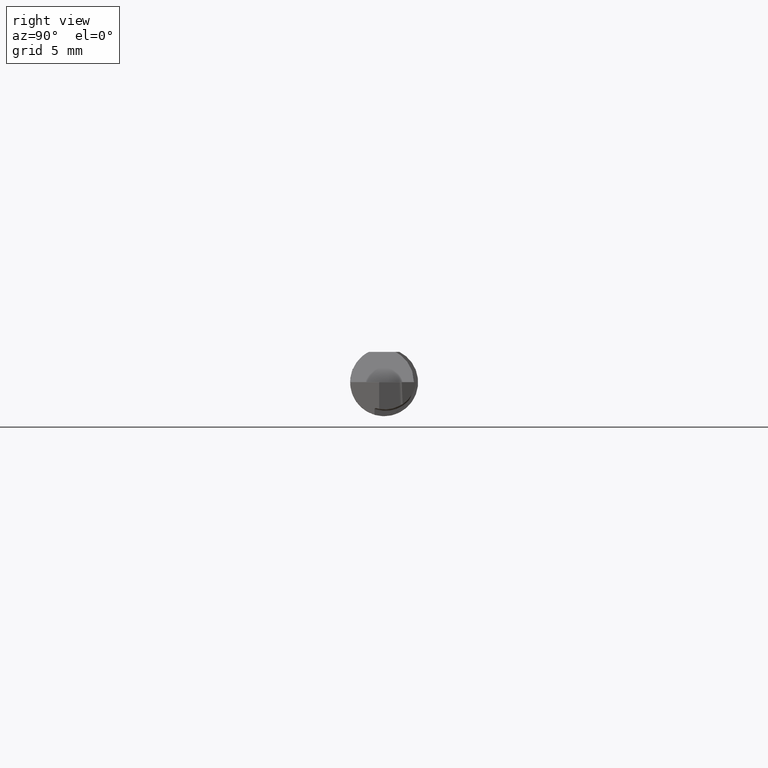
[diagram: clean part render]
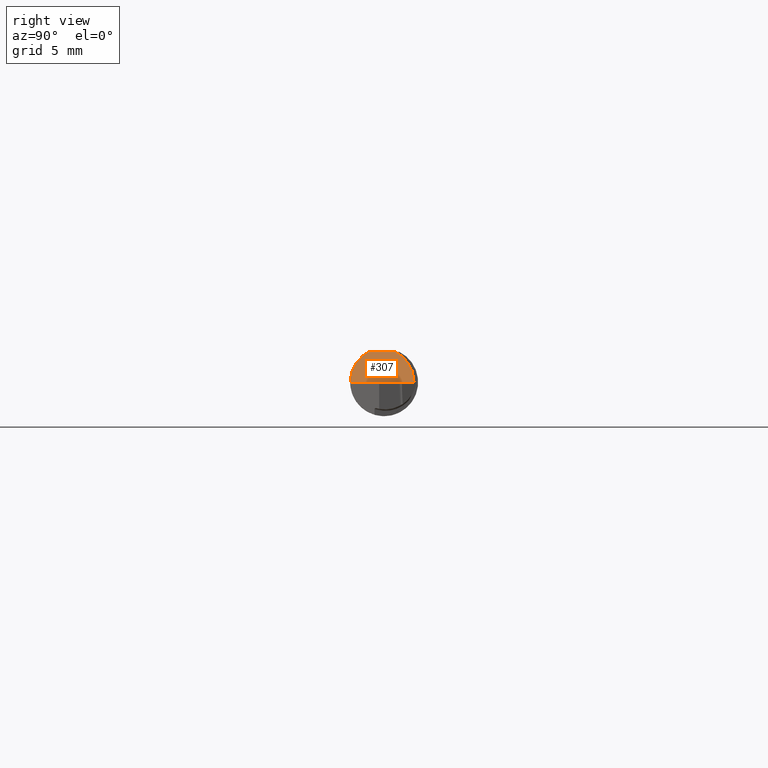
[diagram: same view with one face highlighted and labeled with its STEP entity id]
A machine part, right view. The second image highlights one B-rep face of the part: STEP entity #307.
In plain terms, the highlighted planar face has unit normal (0.7071, -0, 0.7071).
Its self-contained STEP definition (entity closure, byte-faithful):
#38 = PLANE ( 'NONE',  #734 ) ;
#122 = EDGE_CURVE ( 'NONE', #149, #625, #634, .T. ) ;
#149 = VERTEX_POINT ( 'NONE', #273 ) ;
#158 = VECTOR ( 'NONE', #565, 39.37007874015748143 ) ;
#159 = CARTESIAN_POINT ( 'NONE',  ( 1.695999999999999286, -0.04209513035969836975, 0.08360000000000000764 ) ) ;
#186 = EDGE_CURVE ( 'NONE', #625, #254, #471, .T. ) ;
#194 = CARTESIAN_POINT ( 'NONE',  ( 1.712338867969052103, -0.07454376160376645355, 0.06726113203094705173 ) ) ;
#218 = VERTEX_POINT ( 'NONE', #575 ) ;
#223 = DIRECTION ( 'NONE',  ( 0.7071067811865515695, -0.000000000000000000, 0.7071067811865434649 ) ) ;
#254 = VERTEX_POINT ( 'NONE', #159 ) ;
#260 = ORIENTED_EDGE ( 'NONE', *, *, #122, .F. ) ;
#263 = CARTESIAN_POINT ( 'NONE',  ( 1.779599999999998516, -0.09360000000000001652, 0.000000000000000000 ) ) ;
#273 = CARTESIAN_POINT ( 'NONE',  ( 1.779599999999998516, 0.08259923835978043305, 0.000000000000000000 ) ) ;
#307 = ADVANCED_FACE ( 'NONE', ( #535 ), #38, .T. ) ;
#314 = LINE ( 'NONE', #375, #158 ) ;
#321 = EDGE_LOOP ( 'NONE', ( #260, #415, #463, #378 ) ) ;
#337 = EDGE_CURVE ( 'NONE', #149, #218, #387, .T. ) ;
#339 = DIRECTION ( 'NONE',  ( 0.000000000000000000, -1.000000000000000000, 0.000000000000000000 ) ) ;
#363 = VECTOR ( 'NONE', #339, 39.37007874015748143 ) ;
#375 = CARTESIAN_POINT ( 'NONE',  ( 1.695999999999999286, 0.04209513035969836975, 0.08360000000000000764 ) ) ;
#378 = ORIENTED_EDGE ( 'NONE', *, *, #186, .F. ) ;
#387 =( BOUNDED_CURVE ( )  B_SPLINE_CURVE ( 3, ( #573, #507, #646, #762 ),
 .UNSPECIFIED., .F., .F. ) 
 B_SPLINE_CURVE_WITH_KNOTS ( ( 4, 4 ),
 ( 4.712388980384689674, 5.818846015254569792 ),
 .UNSPECIFIED. ) 
 CURVE ( )  GEOMETRIC_REPRESENTATION_ITEM ( )  RATIONAL_B_SPLINE_CURVE ( ( 1.000000000000000000, 0.9005550513955334901, 0.9005550513955334901, 1.000000000000000000 ) ) 
 REPRESENTATION_ITEM ( '' )  );
#395 = CARTESIAN_POINT ( 'NONE',  ( 1.743269953535348638, -0.09360000000000001652, 0.03633004646465035764 ) ) ;
#415 = ORIENTED_EDGE ( 'NONE', *, *, #337, .T. ) ;
#463 = ORIENTED_EDGE ( 'NONE', *, *, #620, .F. ) ;
#471 =( BOUNDED_CURVE ( )  B_SPLINE_CURVE ( 3, ( #263, #395, #194, #504 ),
 .UNSPECIFIED., .F., .F. ) 
 B_SPLINE_CURVE_WITH_KNOTS ( ( 4, 4 ),
 ( 4.712388980384689674, 5.816717474156034129 ),
 .UNSPECIFIED. ) 
 CURVE ( )  GEOMETRIC_REPRESENTATION_ITEM ( )  RATIONAL_B_SPLINE_CURVE ( ( 1.000000000000000000, 0.9009275347591065852, 0.9009275347591065852, 1.000000000000000000 ) ) 
 REPRESENTATION_ITEM ( '' )  );
#491 = CARTESIAN_POINT ( 'NONE',  ( 1.779599999999998516, -0.09360000000000001652, 0.000000000000000000 ) ) ;
#497 = CARTESIAN_POINT ( 'NONE',  ( 1.779599999999998516, -0.1936000000000000221, 0.000000000000000000 ) ) ;
#504 = CARTESIAN_POINT ( 'NONE',  ( 1.695999999999999286, -0.04209513035969836975, 0.08360000000000000764 ) ) ;
#507 = CARTESIAN_POINT ( 'NONE',  ( 1.743231059775836922, 0.08259923835978048856, 0.03636894022416206629 ) ) ;
#535 = FACE_OUTER_BOUND ( 'NONE', #321, .T. ) ;
#565 = DIRECTION ( 'NONE',  ( -0.000000000000000000, 1.000000000000000000, 0.000000000000000000 ) ) ;
#573 = CARTESIAN_POINT ( 'NONE',  ( 1.779599999999998516, 0.08259923835978043305, 0.000000000000000000 ) ) ;
#575 = CARTESIAN_POINT ( 'NONE',  ( 1.695999999999999286, 0.03097154424326392999, 0.08360000000000000764 ) ) ;
#620 = EDGE_CURVE ( 'NONE', #254, #218, #314, .T. ) ;
#625 = VERTEX_POINT ( 'NONE', #491 ) ;
#634 = LINE ( 'NONE', #497, #363 ) ;
#646 = CARTESIAN_POINT ( 'NONE',  ( 1.712287180638761397, 0.06348965550251473022, 0.06731281936123810483 ) ) ;
#720 = DIRECTION ( 'NONE',  ( 0.7071067811865433539, 0.000000000000000000, -0.7071067811865514585 ) ) ;
#734 = AXIS2_PLACEMENT_3D ( 'NONE', #777, #223, #720 ) ;
#762 = CARTESIAN_POINT ( 'NONE',  ( 1.695999999999999286, 0.03097154424326392999, 0.08360000000000000764 ) ) ;
#777 = CARTESIAN_POINT ( 'NONE',  ( 1.779999999999999805, 0.1936000000000000221, -0.0004000000000014661316 ) ) ;